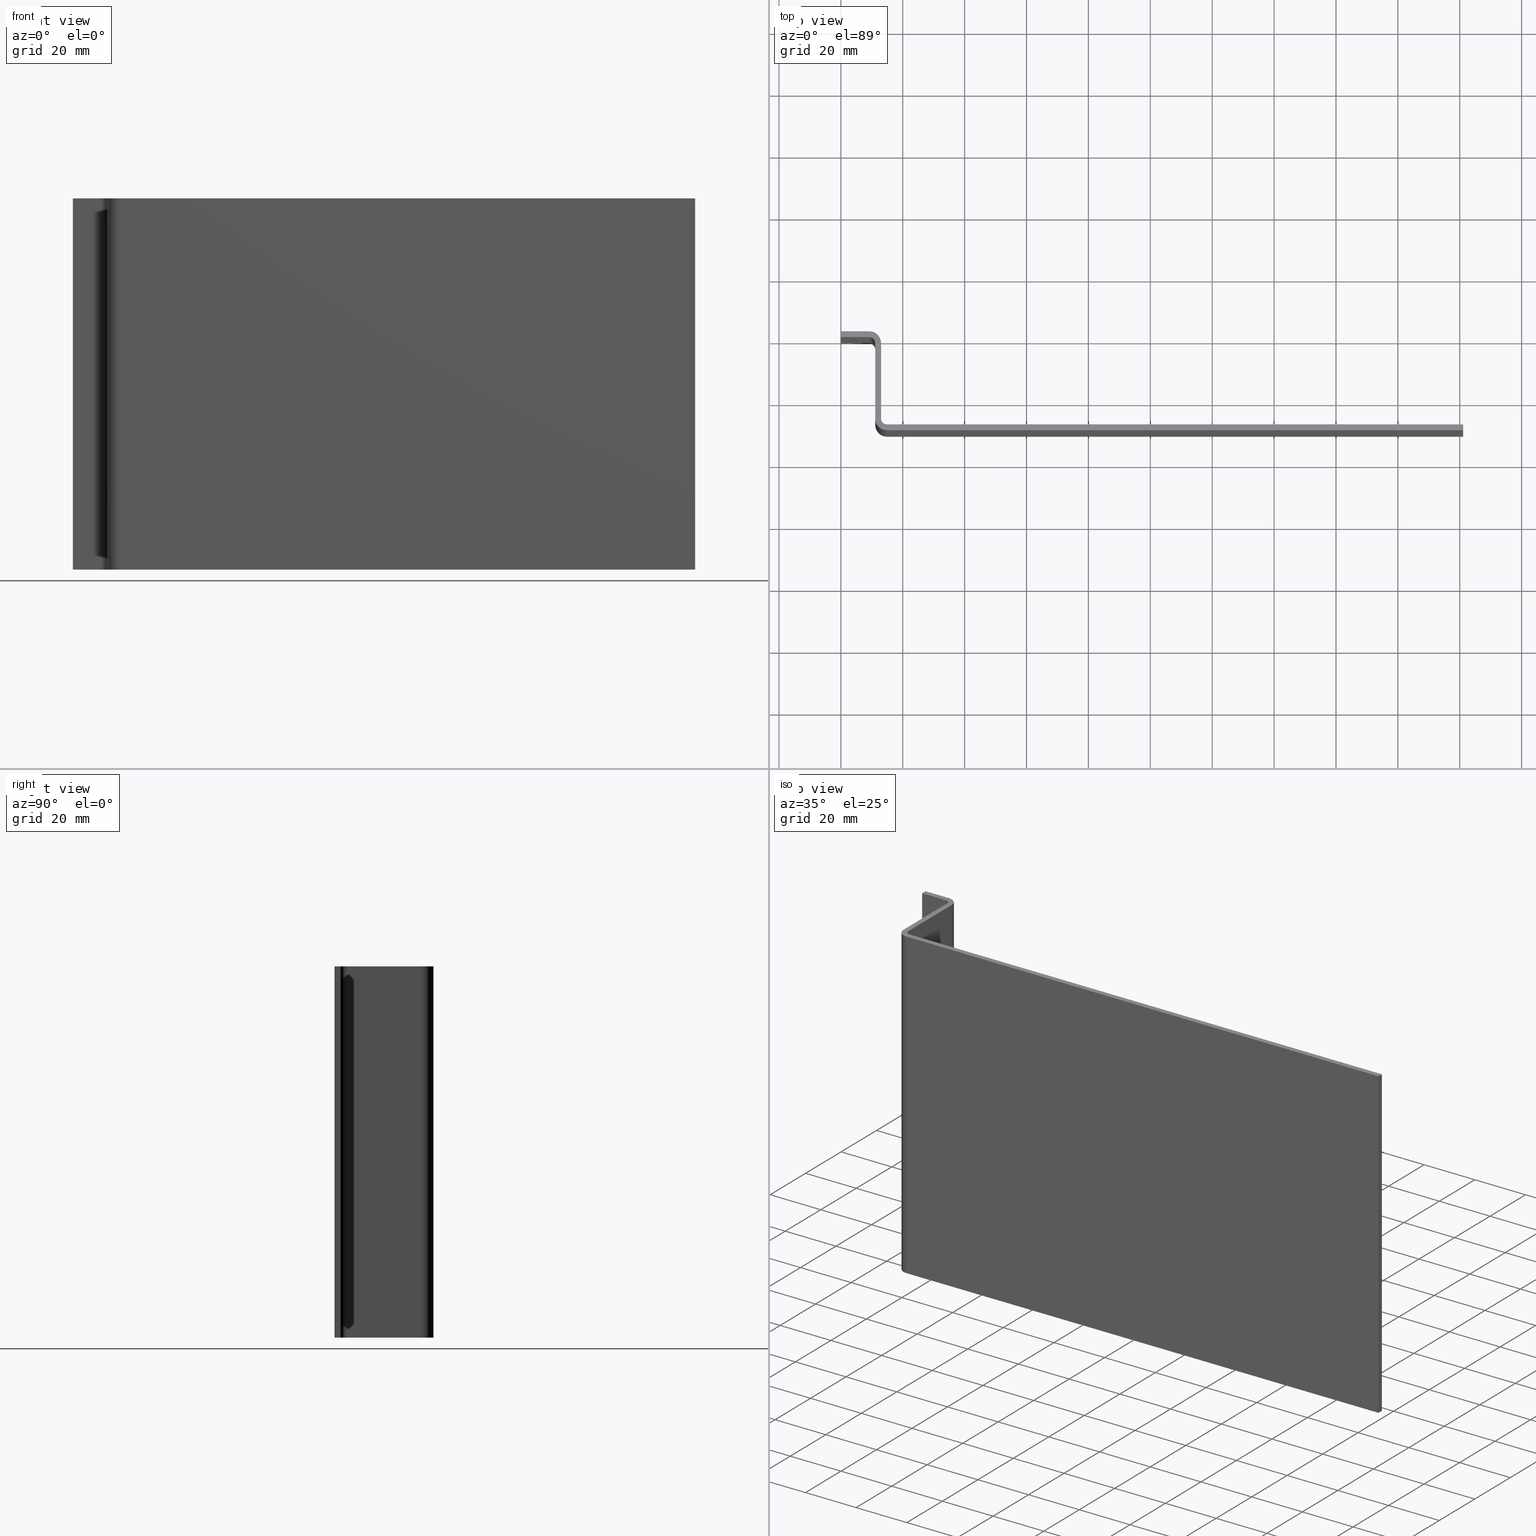
[diagram: canonical four-view strip — front | top / right | iso, engineering-drawing reading convention]
A machine part, canonical four-view strip (front | top / right | iso — engineering-drawing reading convention). The complete STEP part file that produces these views, byte-faithful:
ISO-10303-21;
HEADER;
FILE_DESCRIPTION (( 'STEP AP203' ),
    '1' );
FILE_NAME ('�st �zalasyon Kapak.STEP',
    '2018-12-19T12:19:28',
    ( '' ),
    ( '' ),
    'SwSTEP 2.0',
    'SolidWorks 2011',
    '' );
FILE_SCHEMA (( 'CONFIG_CONTROL_DESIGN' ));
ENDSEC;

DATA;
#1 = CC_DESIGN_DATE_AND_TIME_ASSIGNMENT ( #500, #501, ( #119 ) ) ;
#2 = APPROVAL ( #446, 'BEL�RT�LMEM��' ) ;
#3 = CC_DESIGN_DATE_AND_TIME_ASSIGNMENT ( #481, #482, ( #7 ) ) ;
#4 = APPROVAL ( #490, 'BEL�RT�LMEM��' ) ;
#5 = CC_DESIGN_PERSON_AND_ORGANIZATION_ASSIGNMENT ( #441, #443, ( #7 ) ) ;
#6 = CC_DESIGN_PERSON_AND_ORGANIZATION_ASSIGNMENT ( #448, #480, ( #141 ) ) ;
#7 = PRODUCT_DEFINITION ( 'Bilinmeyen', '', #134, #144 ) ;
#8 = CC_DESIGN_PERSON_AND_ORGANIZATION_ASSIGNMENT ( #491, #506, ( #119 ) ) ;
#9 = APPROVAL ( #477, 'BEL�RT�LMEM��' ) ;
#10 = CC_DESIGN_PERSON_AND_ORGANIZATION_ASSIGNMENT ( #493, #507, ( #134 ) ) ;
#11 = CC_DESIGN_PERSON_AND_ORGANIZATION_ASSIGNMENT ( #503, #492, ( #134 ) ) ;
#12 = PRODUCT_RELATED_PRODUCT_CATEGORY ( 'detail', '', ( #141 ) ) ;
#13 = ADVANCED_FACE ( 'NONE', ( #282 ), #266, .F. ) ;
#14 = ADVANCED_FACE ( 'NONE', ( #267 ), #227, .T. ) ;
#15 = ADVANCED_FACE ( 'NONE', ( #262 ), #275, .F. ) ;
#16 = ADVANCED_FACE ( 'NONE', ( #296 ), #261, .T. ) ;
#17 = ADVANCED_FACE ( 'NONE', ( #297 ), #277, .T. ) ;
#18 = EDGE_CURVE ( 'NONE', #204, #217, #280, .T. ) ;
#19 = ADVANCED_FACE ( 'NONE', ( #294 ), #264, .F. ) ;
#20 = EDGE_CURVE ( 'NONE', #226, #237, #249, .T. ) ;
#21 = ADVANCED_FACE ( 'NONE', ( #248 ), #253, .F. ) ;
#22 = ADVANCED_FACE ( 'NONE', ( #336 ), #255, .F. ) ;
#23 = EDGE_CURVE ( 'NONE', #197, #208, #318, .T. ) ;
#24 = EDGE_CURVE ( 'NONE', #219, #201, #325, .T. ) ;
#25 = EDGE_CURVE ( 'NONE', #208, #203, #308, .T. ) ;
#26 = EDGE_CURVE ( 'NONE', #218, #226, #71, .T. ) ;
#27 = ADVANCED_FACE ( 'NONE', ( #302 ), #315, .F. ) ;
#28 = EDGE_CURVE ( 'NONE', #232, #219, #321, .T. ) ;
#29 = EDGE_CURVE ( 'NONE', #202, #232, #104, .T. ) ;
#30 = EDGE_CURVE ( 'NONE', #217, #198, #343, .T. ) ;
#31 = EDGE_CURVE ( 'NONE', #189, #200, #83, .T. ) ;
#32 = EDGE_CURVE ( 'NONE', #205, #207, #331, .T. ) ;
#33 = EDGE_CURVE ( 'NONE', #218, #203, #322, .T. ) ;
#34 = ADVANCED_FACE ( 'NONE', ( #330 ), #313, .F. ) ;
#35 = EDGE_CURVE ( 'NONE', #201, #215, #66, .T. ) ;
#36 = EDGE_CURVE ( 'NONE', #189, #201, #356, .T. ) ;
#37 = EDGE_CURVE ( 'NONE', #202, #198, #361, .T. ) ;
#38 = EDGE_CURVE ( 'NONE', #197, #218, #305, .T. ) ;
#39 = EDGE_CURVE ( 'NONE', #237, #209, #113, .T. ) ;
#40 = EDGE_CURVE ( 'NONE', #207, #208, #348, .T. ) ;
#41 = ADVANCED_FACE ( 'NONE', ( #382 ), #370, .F. ) ;
#42 = EDGE_CURVE ( 'NONE', #225, #220, #371, .T. ) ;
#43 = EDGE_CURVE ( 'NONE', #215, #207, #378, .T. ) ;
#44 = EDGE_CURVE ( 'NONE', #200, #205, #353, .T. ) ;
#45 = EDGE_CURVE ( 'NONE', #220, #217, #368, .T. ) ;
#46 = EDGE_CURVE ( 'NONE', #225, #204, #377, .T. ) ;
#47 = EDGE_CURVE ( 'NONE', #220, #202, #387, .T. ) ;
#48 = EDGE_CURVE ( 'NONE', #205, #197, #386, .T. ) ;
#49 = EDGE_CURVE ( 'NONE', #200, #215, #350, .T. ) ;
#50 = EDGE_CURVE ( 'NONE', #203, #221, #94, .T. ) ;
#51 = EDGE_CURVE ( 'NONE', #237, #210, #385, .T. ) ;
#52 = EDGE_CURVE ( 'NONE', #226, #221, #422, .T. ) ;
#53 = EDGE_CURVE ( 'NONE', #221, #210, #420, .T. ) ;
#54 = EDGE_CURVE ( 'NONE', #198, #219, #96, .T. ) ;
#55 = EDGE_CURVE ( 'NONE', #210, #190, #87, .T. ) ;
#56 = EDGE_CURVE ( 'NONE', #190, #204, #401, .T. ) ;
#57 = EDGE_CURVE ( 'NONE', #209, #190, #394, .T. ) ;
#58 = ADVANCED_FACE ( 'NONE', ( #427 ), #431, .F. ) ;
#59 = ADVANCED_FACE ( 'NONE', ( #437 ), #428, .F. ) ;
#60 = EDGE_CURVE ( 'NONE', #209, #225, #438, .T. ) ;
#61 = EDGE_CURVE ( 'NONE', #232, #189, #398, .T. ) ;
#62 = ADVANCED_FACE ( 'NONE', ( #404 ), #418, .F. ) ;
#63 = APPLICATION_CONTEXT ( 'configuration controlled 3d designs of mechanical parts and assemblies' ) ;
#64 = APPLICATION_CONTEXT ( 'configuration controlled 3d designs of mechanical parts and assemblies' ) ;
#65 = VECTOR ( 'NONE', #310, 1000.000000000000000 ) ;
#66 = CIRCLE ( 'NONE', #103, 3.799999999999999400 ) ;
#67 = AXIS2_PLACEMENT_3D ( 'NONE', #393, #439, #397 ) ;
#68 = VECTOR ( 'NONE', #303, 1000.000000000000000 ) ;
#69 = VECTOR ( 'NONE', #391, 1000.000000000000000 ) ;
#70 = VECTOR ( 'NONE', #251, 1000.000000000000000 ) ;
#71 = CIRCLE ( 'NONE', #114, 1.899999999999999000 ) ;
#72 = VECTOR ( 'NONE', #440, 1000.000000000000000 ) ;
#73 = AXIS2_PLACEMENT_3D ( 'NONE', #289, #268, #245 ) ;
#74 = VECTOR ( 'NONE', #312, 1000.000000000000000 ) ;
#75 = VECTOR ( 'NONE', #352, 1000.000000000000000 ) ;
#76 = VECTOR ( 'NONE', #355, 1000.000000000000000 ) ;
#77 = VECTOR ( 'NONE', #326, 1000.000000000000000 ) ;
#78 = VECTOR ( 'NONE', #376, 1000.000000000000000 ) ;
#79 = VECTOR ( 'NONE', #383, 1000.000000000000000 ) ;
#80 = VECTOR ( 'NONE', #373, 1000.000000000000000 ) ;
#81 = AXIS2_PLACEMENT_3D ( 'NONE', #269, #283, #284 ) ;
#82 = CLOSED_SHELL ( 'NONE', ( #58, #19, #62, #21, #17, #27, #41, #22, #59, #15, #14, #34, #13, #16 ) ) ;
#83 = CIRCLE ( 'NONE', #92, 3.799999999999999400 ) ;
#84 = VECTOR ( 'NONE', #344, 1000.000000000000000 ) ;
#85 = AXIS2_PLACEMENT_3D ( 'NONE', #412, #410, #399 ) ;
#86 = VECTOR ( 'NONE', #341, 1000.000000000000000 ) ;
#87 = CIRCLE ( 'NONE', #116, 3.800000000000001200 ) ;
#88 = AXIS2_PLACEMENT_3D ( 'NONE', #362, #346, #363 ) ;
#89 = AXIS2_PLACEMENT_3D ( 'NONE', #299, #300, #304 ) ;
#90 = VECTOR ( 'NONE', #347, 1000.000000000000000 ) ;
#91 = AXIS2_PLACEMENT_3D ( 'NONE', #278, #288, #279 ) ;
#92 = AXIS2_PLACEMENT_3D ( 'NONE', #327, #329, #333 ) ;
#93 = AXIS2_PLACEMENT_3D ( 'NONE', #338, #334, #307 ) ;
#94 = CIRCLE ( 'NONE', #67, 1.899999999999999000 ) ;
#95 = VECTOR ( 'NONE', #314, 1000.000000000000000 ) ;
#96 = CIRCLE ( 'NONE', #85, 1.900000000000000600 ) ;
#97 = AXIS2_PLACEMENT_3D ( 'NONE', #309, #316, #317 ) ;
#98 = VECTOR ( 'NONE', #354, 1000.000000000000000 ) ;
#99 = AXIS2_PLACEMENT_3D ( 'NONE', #349, #389, #390 ) ;
#100 = VECTOR ( 'NONE', #359, 1000.000000000000000 ) ;
#101 = AXIS2_PLACEMENT_3D ( 'NONE', #270, #246, #291 ) ;
#102 = AXIS2_PLACEMENT_3D ( 'NONE', #256, #273, #276 ) ;
#103 = AXIS2_PLACEMENT_3D ( 'NONE', #374, #372, #365 ) ;
#104 = CIRCLE ( 'NONE', #105, 1.900000000000000600 ) ;
#105 = AXIS2_PLACEMENT_3D ( 'NONE', #332, #323, #301 ) ;
#106 = VECTOR ( 'NONE', #366, 1000.000000000000000 ) ;
#107 = VECTOR ( 'NONE', #381, 1000.000000000000000 ) ;
#108 = VECTOR ( 'NONE', #358, 1000.000000000000000 ) ;
#109 = AXIS2_PLACEMENT_3D ( 'NONE', #287, #260, #295 ) ;
#110 = VECTOR ( 'NONE', #430, 1000.000000000000000 ) ;
#111 = VECTOR ( 'NONE', #263, 1000.000000000000000 ) ;
#112 = AXIS2_PLACEMENT_3D ( 'NONE', #292, #254, #293 ) ;
#113 = CIRCLE ( 'NONE', #99, 3.800000000000001200 ) ;
#114 = AXIS2_PLACEMENT_3D ( 'NONE', #319, #339, #340 ) ;
#115 = VECTOR ( 'NONE', #337, 1000.000000000000000 ) ;
#116 = AXIS2_PLACEMENT_3D ( 'NONE', #424, #396, #400 ) ;
#117 = LOCAL_TIME ( 15, 19, 28.00000000000000000, #466 ) ;
#118 = CC_DESIGN_APPROVAL ( #2, ( #134 ) ) ;
#119 = SECURITY_CLASSIFICATION ( '', '', #494 ) ;
#120 = LOCAL_TIME ( 15, 19, 28.00000000000000000, #479 ) ;
#121 = AXIS2_PLACEMENT_3D ( 'NONE', #407, #408, #409 ) ;
#122 = APPROVAL_PERSON_ORGANIZATION ( #498, #4, #495 ) ;
#123 =( GEOMETRIC_REPRESENTATION_CONTEXT ( 3 ) GLOBAL_UNCERTAINTY_ASSIGNED_CONTEXT ( ( #145 ) ) GLOBAL_UNIT_ASSIGNED_CONTEXT ( ( #474, #475, #454 ) ) REPRESENTATION_CONTEXT ( 'NONE', 'WORKASPACE' ) );
#124 = CC_DESIGN_APPROVAL ( #4, ( #119 ) ) ;
#125 = VECTOR ( 'NONE', #436, 1000.000000000000000 ) ;
#126 = CC_DESIGN_SECURITY_CLASSIFICATION ( #119, ( #134 ) ) ;
#127 = VECTOR ( 'NONE', #395, 1000.000000000000000 ) ;
#128 = APPROVAL_PERSON_ORGANIZATION ( #444, #2, #447 ) ;
#129 = VECTOR ( 'NONE', #402, 1000.000000000000000 ) ;
#130 = CC_DESIGN_APPROVAL ( #9, ( #7 ) ) ;
#131 = AXIS2_PLACEMENT_3D ( 'NONE', #459, #460, #463 ) ;
#132 = APPROVAL_PERSON_ORGANIZATION ( #464, #9, #487 ) ;
#133 = LOCAL_TIME ( 15, 19, 28.00000000000000000, #505 ) ;
#134 = PRODUCT_DEFINITION_FORMATION_WITH_SPECIFIED_SOURCE ( '     Herhangi', '', #141, .NOT_KNOWN. ) ;
#135 = LOCAL_TIME ( 15, 19, 28.00000000000000000, #453 ) ;
#136 = AXIS2_PLACEMENT_3D ( 'NONE', #433, #434, #435 ) ;
#137 = ORGANIZATION ( 'BEL�RT�LMEM��', 'BEL�RT�LMEM��', '' ) ;
#138 = VECTOR ( 'NONE', #426, 1000.000000000000000 ) ;
#139 = LOCAL_TIME ( 15, 19, 28.00000000000000000, #504 ) ;
#140 = AXIS2_PLACEMENT_3D ( 'NONE', #403, #417, #432 ) ;
#141 = PRODUCT ( '�st �zalasyon Kapak', '�st �zalasyon Kapak', '', ( #476 ) ) ;
#142 = MANIFOLD_SOLID_BREP ( 'Y�kseklik-Ekstr�zyon1', #82 ) ;
#143 = PRODUCT_DEFINITION_SHAPE ( 'NONE', 'NONE',  #7 ) ;
#144 = DESIGN_CONTEXT ( 'detailed design', #63, 'design' ) ;
#145 = UNCERTAINTY_MEASURE_WITH_UNIT (LENGTH_MEASURE( 1.000000000000000100E-005 ), #474, 'distance_accuracy_value', 'NONE');
#146 = ORIENTED_EDGE ( 'NONE', *, *, #61, .F. ) ;
#147 = ORIENTED_EDGE ( 'NONE', *, *, #23, .F. ) ;
#148 = ORIENTED_EDGE ( 'NONE', *, *, #44, .F. ) ;
#149 = ORIENTED_EDGE ( 'NONE', *, *, #36, .T. ) ;
#150 = ORIENTED_EDGE ( 'NONE', *, *, #55, .T. ) ;
#151 = ORIENTED_EDGE ( 'NONE', *, *, #52, .T. ) ;
#152 = ORIENTED_EDGE ( 'NONE', *, *, #30, .T. ) ;
#153 = ORIENTED_EDGE ( 'NONE', *, *, #32, .F. ) ;
#154 = ORIENTED_EDGE ( 'NONE', *, *, #28, .F. ) ;
#155 = ORIENTED_EDGE ( 'NONE', *, *, #23, .T. ) ;
#156 = ORIENTED_EDGE ( 'NONE', *, *, #49, .F. ) ;
#157 = ORIENTED_EDGE ( 'NONE', *, *, #36, .F. ) ;
#158 = ORIENTED_EDGE ( 'NONE', *, *, #31, .F. ) ;
#159 = ORIENTED_EDGE ( 'NONE', *, *, #49, .T. ) ;
#160 = ORIENTED_EDGE ( 'NONE', *, *, #33, .T. ) ;
#161 = ORIENTED_EDGE ( 'NONE', *, *, #37, .T. ) ;
#162 = ORIENTED_EDGE ( 'NONE', *, *, #51, .F. ) ;
#163 = ORIENTED_EDGE ( 'NONE', *, *, #47, .F. ) ;
#164 = ORIENTED_EDGE ( 'NONE', *, *, #37, .F. ) ;
#165 = ORIENTED_EDGE ( 'NONE', *, *, #48, .F. ) ;
#166 = ORIENTED_EDGE ( 'NONE', *, *, #24, .T. ) ;
#167 = ORIENTED_EDGE ( 'NONE', *, *, #26, .F. ) ;
#168 = ORIENTED_EDGE ( 'NONE', *, *, #38, .F. ) ;
#169 = ORIENTED_EDGE ( 'NONE', *, *, #42, .F. ) ;
#170 = ORIENTED_EDGE ( 'NONE', *, *, #46, .T. ) ;
#171 = ORIENTED_EDGE ( 'NONE', *, *, #45, .F. ) ;
#172 = ORIENTED_EDGE ( 'NONE', *, *, #33, .F. ) ;
#173 = ORIENTED_EDGE ( 'NONE', *, *, #50, .T. ) ;
#174 = ORIENTED_EDGE ( 'NONE', *, *, #52, .F. ) ;
#175 = ORIENTED_EDGE ( 'NONE', *, *, #53, .T. ) ;
#176 = ORIENTED_EDGE ( 'NONE', *, *, #40, .T. ) ;
#177 = ORIENTED_EDGE ( 'NONE', *, *, #29, .F. ) ;
#178 = ORIENTED_EDGE ( 'NONE', *, *, #45, .T. ) ;
#179 = ORIENTED_EDGE ( 'NONE', *, *, #32, .T. ) ;
#180 = ORIENTED_EDGE ( 'NONE', *, *, #43, .T. ) ;
#181 = ORIENTED_EDGE ( 'NONE', *, *, #20, .F. ) ;
#182 = ORIENTED_EDGE ( 'NONE', *, *, #18, .T. ) ;
#183 = ORIENTED_EDGE ( 'NONE', *, *, #54, .T. ) ;
#184 = ORIENTED_EDGE ( 'NONE', *, *, #25, .T. ) ;
#185 = ORIENTED_EDGE ( 'NONE', *, *, #28, .T. ) ;
#186 = ORIENTED_EDGE ( 'NONE', *, *, #31, .T. ) ;
#187 = ORIENTED_EDGE ( 'NONE', *, *, #18, .F. ) ;
#188 = ORIENTED_EDGE ( 'NONE', *, *, #25, .F. ) ;
#189 = VERTEX_POINT ( 'NONE', #416 ) ;
#190 = VERTEX_POINT ( 'NONE', #414 ) ;
#191 = ORIENTED_EDGE ( 'NONE', *, *, #47, .T. ) ;
#192 = ORIENTED_EDGE ( 'NONE', *, *, #53, .F. ) ;
#193 = ORIENTED_EDGE ( 'NONE', *, *, #30, .F. ) ;
#194 = ORIENTED_EDGE ( 'NONE', *, *, #42, .T. ) ;
#195 = ORIENTED_EDGE ( 'NONE', *, *, #24, .F. ) ;
#196 = ORIENTED_EDGE ( 'NONE', *, *, #38, .T. ) ;
#197 = VERTEX_POINT ( 'NONE', #405 ) ;
#198 = VERTEX_POINT ( 'NONE', #411 ) ;
#199 = ORIENTED_EDGE ( 'NONE', *, *, #60, .F. ) ;
#200 = VERTEX_POINT ( 'NONE', #413 ) ;
#201 = VERTEX_POINT ( 'NONE', #419 ) ;
#202 = VERTEX_POINT ( 'NONE', #488 ) ;
#203 = VERTEX_POINT ( 'NONE', #415 ) ;
#204 = VERTEX_POINT ( 'NONE', #472 ) ;
#205 = VERTEX_POINT ( 'NONE', #457 ) ;
#206 = ORIENTED_EDGE ( 'NONE', *, *, #35, .T. ) ;
#207 = VERTEX_POINT ( 'NONE', #461 ) ;
#208 = VERTEX_POINT ( 'NONE', #445 ) ;
#209 = VERTEX_POINT ( 'NONE', #468 ) ;
#210 = VERTEX_POINT ( 'NONE', #473 ) ;
#211 = ORIENTED_EDGE ( 'NONE', *, *, #35, .F. ) ;
#212 = ORIENTED_EDGE ( 'NONE', *, *, #51, .T. ) ;
#213 = ORIENTED_EDGE ( 'NONE', *, *, #57, .F. ) ;
#214 = ORIENTED_EDGE ( 'NONE', *, *, #55, .F. ) ;
#215 = VERTEX_POINT ( 'NONE', #456 ) ;
#216 = ORIENTED_EDGE ( 'NONE', *, *, #57, .T. ) ;
#217 = VERTEX_POINT ( 'NONE', #465 ) ;
#218 = VERTEX_POINT ( 'NONE', #469 ) ;
#219 = VERTEX_POINT ( 'NONE', #442 ) ;
#220 = VERTEX_POINT ( 'NONE', #470 ) ;
#221 = VERTEX_POINT ( 'NONE', #471 ) ;
#222 = ORIENTED_EDGE ( 'NONE', *, *, #39, .T. ) ;
#223 = ORIENTED_EDGE ( 'NONE', *, *, #61, .T. ) ;
#224 = ORIENTED_EDGE ( 'NONE', *, *, #48, .T. ) ;
#225 = VERTEX_POINT ( 'NONE', #462 ) ;
#226 = VERTEX_POINT ( 'NONE', #486 ) ;
#227 = CYLINDRICAL_SURFACE ( 'NONE', #81, 3.800000000000000300 ) ;
#228 = EDGE_LOOP ( 'NONE', ( #206, #156, #158, #149 ) ) ;
#229 = ORIENTED_EDGE ( 'NONE', *, *, #46, .F. ) ;
#230 = ORIENTED_EDGE ( 'NONE', *, *, #29, .T. ) ;
#231 = ORIENTED_EDGE ( 'NONE', *, *, #44, .T. ) ;
#232 = VERTEX_POINT ( 'NONE', #489 ) ;
#233 = EDGE_LOOP ( 'NONE', ( #173, #174, #167, #160 ) ) ;
#234 = ORIENTED_EDGE ( 'NONE', *, *, #20, .T. ) ;
#235 = ORIENTED_EDGE ( 'NONE', *, *, #60, .T. ) ;
#236 = ORIENTED_EDGE ( 'NONE', *, *, #43, .F. ) ;
#237 = VERTEX_POINT ( 'NONE', #452 ) ;
#238 = ORIENTED_EDGE ( 'NONE', *, *, #50, .F. ) ;
#239 = ORIENTED_EDGE ( 'NONE', *, *, #56, .F. ) ;
#240 = ORIENTED_EDGE ( 'NONE', *, *, #56, .T. ) ;
#241 = ORIENTED_EDGE ( 'NONE', *, *, #54, .F. ) ;
#242 = ORIENTED_EDGE ( 'NONE', *, *, #40, .F. ) ;
#243 = ORIENTED_EDGE ( 'NONE', *, *, #26, .T. ) ;
#244 = ORIENTED_EDGE ( 'NONE', *, *, #39, .F. ) ;
#245 = DIRECTION ( 'NONE',  ( -1.000000000000000000, 0.0000000000000000000, 0.0000000000000000000 ) ) ;
#246 = DIRECTION ( 'NONE',  ( 0.0000000000000000000, 1.000000000000000000, 0.0000000000000000000 ) ) ;
#247 = EDGE_LOOP ( 'NONE', ( #184, #172, #168, #155 ) ) ;
#248 = FACE_OUTER_BOUND ( 'NONE', #271, .T. ) ;
#249 = LINE ( 'NONE', #250, #70 ) ;
#250 = CARTESIAN_POINT ( 'NONE',  ( 13.00000000000000200, -1.899999999999999500, 120.0000000000000000 ) ) ;
#251 = DIRECTION ( 'NONE',  ( -7.109522442527900700E-017, 1.000000000000000000, -0.0000000000000000000 ) ) ;
#252 = CARTESIAN_POINT ( 'NONE',  ( 0.0000000000000000000, 1.899999999999999900, 0.0000000000000000000 ) ) ;
#253 = PLANE ( 'NONE',  #112 ) ;
#254 = DIRECTION ( 'NONE',  ( 1.000000000000000000, 1.421904488505580900E-016, -0.0000000000000000000 ) ) ;
#255 = PLANE ( 'NONE',  #97 ) ;
#256 = CARTESIAN_POINT ( 'NONE',  ( 13.00000000000000200, -1.899999999999999500, 120.0000000000000000 ) ) ;
#257 = EDGE_LOOP ( 'NONE', ( #150, #213, #244, #212 ) ) ;
#258 = EDGE_LOOP ( 'NONE', ( #194, #191, #230, #223, #186, #231, #224, #196, #243, #234, #222, #235 ) ) ;
#259 = EDGE_LOOP ( 'NONE', ( #182, #171, #169, #170 ) ) ;
#260 = DIRECTION ( 'NONE',  ( -0.0000000000000000000, 0.0000000000000000000, -1.000000000000000000 ) ) ;
#261 = PLANE ( 'NONE',  #91 ) ;
#262 = FACE_OUTER_BOUND ( 'NONE', #272, .T. ) ;
#263 = DIRECTION ( 'NONE',  ( 0.0000000000000000000, -1.000000000000000000, 0.0000000000000000000 ) ) ;
#264 = PLANE ( 'NONE',  #101 ) ;
#265 = EDGE_LOOP ( 'NONE', ( #152, #164, #163, #178 ) ) ;
#266 = PLANE ( 'NONE',  #109 ) ;
#267 = FACE_OUTER_BOUND ( 'NONE', #257, .T. ) ;
#268 = DIRECTION ( 'NONE',  ( -0.0000000000000000000, -0.0000000000000000000, -1.000000000000000000 ) ) ;
#269 = CARTESIAN_POINT ( 'NONE',  ( 9.199999999999999300, -1.899999999999999900, 120.0000000000000000 ) ) ;
#270 = CARTESIAN_POINT ( 'NONE',  ( 0.0000000000000000000, 0.0000000000000000000, 120.0000000000000000 ) ) ;
#271 = EDGE_LOOP ( 'NONE', ( #166, #157, #146, #185 ) ) ;
#272 = EDGE_LOOP ( 'NONE', ( #175, #162, #181, #151 ) ) ;
#273 = DIRECTION ( 'NONE',  ( -1.000000000000000000, -7.109522442527900700E-017, 0.0000000000000000000 ) ) ;
#274 = EDGE_LOOP ( 'NONE', ( #180, #153, #148, #159 ) ) ;
#275 = PLANE ( 'NONE',  #102 ) ;
#276 = DIRECTION ( 'NONE',  ( 7.109522442527900700E-017, -1.000000000000000000, 0.0000000000000000000 ) ) ;
#277 = CYLINDRICAL_SURFACE ( 'NONE', #73, 3.799999999999999400 ) ;
#278 = CARTESIAN_POINT ( 'NONE',  ( 9.199999999999997500, -1.899999999999999900, 0.0000000000000000000 ) ) ;
#279 = DIRECTION ( 'NONE',  ( -1.000000000000000000, 0.0000000000000000000, 0.0000000000000000000 ) ) ;
#280 = LINE ( 'NONE', #252, #111 ) ;
#281 = EDGE_LOOP ( 'NONE', ( #187, #239, #214, #192, #238, #188, #242, #236, #211, #195, #241, #193 ) ) ;
#282 = FACE_OUTER_BOUND ( 'NONE', #258, .T. ) ;
#283 = DIRECTION ( 'NONE',  ( -0.0000000000000000000, -0.0000000000000000000, -1.000000000000000000 ) ) ;
#284 = DIRECTION ( 'NONE',  ( -1.000000000000000000, 0.0000000000000000000, 0.0000000000000000000 ) ) ;
#285 = EDGE_LOOP ( 'NONE', ( #183, #154, #177, #161 ) ) ;
#286 = EDGE_LOOP ( 'NONE', ( #240, #229, #199, #216 ) ) ;
#287 = CARTESIAN_POINT ( 'NONE',  ( 9.199999999999997500, -1.899999999999999900, 120.0000000000000000 ) ) ;
#288 = DIRECTION ( 'NONE',  ( -0.0000000000000000000, 0.0000000000000000000, -1.000000000000000000 ) ) ;
#289 = CARTESIAN_POINT ( 'NONE',  ( 14.90000000000000200, -26.30000000000000400, 120.0000000000000000 ) ) ;
#290 = EDGE_LOOP ( 'NONE', ( #176, #147, #165, #179 ) ) ;
#291 = DIRECTION ( 'NONE',  ( 0.0000000000000000000, -0.0000000000000000000, 1.000000000000000000 ) ) ;
#292 = CARTESIAN_POINT ( 'NONE',  ( 11.09999999999999800, -1.899999999999999700, 120.0000000000000000 ) ) ;
#293 = DIRECTION ( 'NONE',  ( -1.421904488505580900E-016, 1.000000000000000000, 0.0000000000000000000 ) ) ;
#294 = FACE_OUTER_BOUND ( 'NONE', #265, .T. ) ;
#295 = DIRECTION ( 'NONE',  ( -1.000000000000000000, 0.0000000000000000000, 0.0000000000000000000 ) ) ;
#296 = FACE_OUTER_BOUND ( 'NONE', #281, .T. ) ;
#297 = FACE_OUTER_BOUND ( 'NONE', #228, .T. ) ;
#298 = CARTESIAN_POINT ( 'NONE',  ( 201.0999999999999900, -30.10000000000000100, 120.0000000000000000 ) ) ;
#299 = CARTESIAN_POINT ( 'NONE',  ( 0.0000000000000000000, 1.899999999999999900, 120.0000000000000000 ) ) ;
#300 = DIRECTION ( 'NONE',  ( -2.356961244533705400E-017, -1.000000000000000000, 0.0000000000000000000 ) ) ;
#301 = DIRECTION ( 'NONE',  ( -1.000000000000000000, 0.0000000000000000000, 0.0000000000000000000 ) ) ;
#302 = FACE_OUTER_BOUND ( 'NONE', #274, .T. ) ;
#303 = DIRECTION ( 'NONE',  ( -0.0000000000000000000, -0.0000000000000000000, -1.000000000000000000 ) ) ;
#304 = DIRECTION ( 'NONE',  ( 1.000000000000000000, -2.356961244533705400E-017, 0.0000000000000000000 ) ) ;
#305 = LINE ( 'NONE', #306, #100 ) ;
#306 = CARTESIAN_POINT ( 'NONE',  ( 14.90000000000001600, -28.20000000000000300, 120.0000000000000000 ) ) ;
#307 = DIRECTION ( 'NONE',  ( 0.0000000000000000000, -0.0000000000000000000, 1.000000000000000000 ) ) ;
#308 = LINE ( 'NONE', #311, #74 ) ;
#309 = CARTESIAN_POINT ( 'NONE',  ( 14.90000000000001600, -28.20000000000000300, 120.0000000000000000 ) ) ;
#310 = DIRECTION ( 'NONE',  ( 1.421904488505580900E-016, -1.000000000000000000, 0.0000000000000000000 ) ) ;
#311 = CARTESIAN_POINT ( 'NONE',  ( 14.90000000000001600, -28.20000000000000300, 0.0000000000000000000 ) ) ;
#312 = DIRECTION ( 'NONE',  ( -1.000000000000000000, -0.0000000000000000000, -0.0000000000000000000 ) ) ;
#313 = PLANE ( 'NONE',  #89 ) ;
#314 = DIRECTION ( 'NONE',  ( -0.0000000000000000000, -0.0000000000000000000, -1.000000000000000000 ) ) ;
#315 = PLANE ( 'NONE',  #93 ) ;
#316 = DIRECTION ( 'NONE',  ( 0.0000000000000000000, -1.000000000000000000, 0.0000000000000000000 ) ) ;
#317 = DIRECTION ( 'NONE',  ( 0.0000000000000000000, -0.0000000000000000000, -1.000000000000000000 ) ) ;
#318 = LINE ( 'NONE', #324, #115 ) ;
#319 = CARTESIAN_POINT ( 'NONE',  ( 14.90000000000000200, -26.30000000000000400, 120.0000000000000000 ) ) ;
#320 = CARTESIAN_POINT ( 'NONE',  ( 11.09999999999999800, -1.899999999999999700, 120.0000000000000000 ) ) ;
#321 = LINE ( 'NONE', #320, #86 ) ;
#322 = LINE ( 'NONE', #328, #68 ) ;
#323 = DIRECTION ( 'NONE',  ( -0.0000000000000000000, -0.0000000000000000000, -1.000000000000000000 ) ) ;
#324 = CARTESIAN_POINT ( 'NONE',  ( 201.0999999999999900, -28.20000000000000300, 120.0000000000000000 ) ) ;
#325 = LINE ( 'NONE', #342, #65 ) ;
#326 = DIRECTION ( 'NONE',  ( 1.000000000000000000, 0.0000000000000000000, 0.0000000000000000000 ) ) ;
#327 = CARTESIAN_POINT ( 'NONE',  ( 14.90000000000000200, -26.30000000000000400, 120.0000000000000000 ) ) ;
#328 = CARTESIAN_POINT ( 'NONE',  ( 14.90000000000001600, -28.20000000000000300, 120.0000000000000000 ) ) ;
#329 = DIRECTION ( 'NONE',  ( 0.0000000000000000000, 0.0000000000000000000, 1.000000000000000000 ) ) ;
#330 = FACE_OUTER_BOUND ( 'NONE', #286, .T. ) ;
#331 = LINE ( 'NONE', #298, #95 ) ;
#332 = CARTESIAN_POINT ( 'NONE',  ( 9.199999999999997500, -1.899999999999999900, 120.0000000000000000 ) ) ;
#333 = DIRECTION ( 'NONE',  ( -1.000000000000000000, 0.0000000000000000000, 0.0000000000000000000 ) ) ;
#334 = DIRECTION ( 'NONE',  ( 0.0000000000000000000, 1.000000000000000000, 0.0000000000000000000 ) ) ;
#335 = CARTESIAN_POINT ( 'NONE',  ( 0.0000000000000000000, 0.0000000000000000000, 0.0000000000000000000 ) ) ;
#336 = FACE_OUTER_BOUND ( 'NONE', #247, .T. ) ;
#337 = DIRECTION ( 'NONE',  ( -0.0000000000000000000, -0.0000000000000000000, -1.000000000000000000 ) ) ;
#338 = CARTESIAN_POINT ( 'NONE',  ( 14.90000000000002700, -30.10000000000000100, 120.0000000000000000 ) ) ;
#339 = DIRECTION ( 'NONE',  ( -0.0000000000000000000, -0.0000000000000000000, -1.000000000000000000 ) ) ;
#340 = DIRECTION ( 'NONE',  ( -1.000000000000000000, 0.0000000000000000000, 0.0000000000000000000 ) ) ;
#341 = DIRECTION ( 'NONE',  ( -0.0000000000000000000, -0.0000000000000000000, -1.000000000000000000 ) ) ;
#342 = CARTESIAN_POINT ( 'NONE',  ( 11.09999999999999800, -1.899999999999999700, 0.0000000000000000000 ) ) ;
#343 = LINE ( 'NONE', #335, #77 ) ;
#344 = DIRECTION ( 'NONE',  ( -0.0000000000000000000, 1.000000000000000000, -0.0000000000000000000 ) ) ;
#345 = CARTESIAN_POINT ( 'NONE',  ( 201.0999999999999900, -28.20000000000000300, 0.0000000000000000000 ) ) ;
#346 = DIRECTION ( 'NONE',  ( -1.000000000000000000, 0.0000000000000000000, 0.0000000000000000000 ) ) ;
#347 = DIRECTION ( 'NONE',  ( -0.0000000000000000000, 1.000000000000000000, -0.0000000000000000000 ) ) ;
#348 = LINE ( 'NONE', #345, #84 ) ;
#349 = CARTESIAN_POINT ( 'NONE',  ( 9.199999999999999300, -1.899999999999999900, 120.0000000000000000 ) ) ;
#350 = LINE ( 'NONE', #351, #75 ) ;
#351 = CARTESIAN_POINT ( 'NONE',  ( 14.90000000000002900, -30.10000000000000100, 120.0000000000000000 ) ) ;
#352 = DIRECTION ( 'NONE',  ( -0.0000000000000000000, -0.0000000000000000000, -1.000000000000000000 ) ) ;
#353 = LINE ( 'NONE', #367, #79 ) ;
#354 = DIRECTION ( 'NONE',  ( -0.0000000000000000000, -0.0000000000000000000, -1.000000000000000000 ) ) ;
#355 = DIRECTION ( 'NONE',  ( -0.0000000000000000000, -0.0000000000000000000, -1.000000000000000000 ) ) ;
#356 = LINE ( 'NONE', #369, #106 ) ;
#357 = CARTESIAN_POINT ( 'NONE',  ( 201.0999999999999900, -28.20000000000000300, 120.0000000000000000 ) ) ;
#358 = DIRECTION ( 'NONE',  ( -0.0000000000000000000, -0.0000000000000000000, -1.000000000000000000 ) ) ;
#359 = DIRECTION ( 'NONE',  ( -1.000000000000000000, -0.0000000000000000000, -0.0000000000000000000 ) ) ;
#360 = CARTESIAN_POINT ( 'NONE',  ( 9.199999999999997500, 0.0000000000000000000, 120.0000000000000000 ) ) ;
#361 = LINE ( 'NONE', #360, #98 ) ;
#362 = CARTESIAN_POINT ( 'NONE',  ( 201.0999999999999900, -28.20000000000000300, 120.0000000000000000 ) ) ;
#363 = DIRECTION ( 'NONE',  ( 0.0000000000000000000, 0.0000000000000000000, 1.000000000000000000 ) ) ;
#364 = CARTESIAN_POINT ( 'NONE',  ( 0.0000000000000000000, 0.0000000000000000000, 120.0000000000000000 ) ) ;
#365 = DIRECTION ( 'NONE',  ( -1.000000000000000000, 0.0000000000000000000, 0.0000000000000000000 ) ) ;
#366 = DIRECTION ( 'NONE',  ( -0.0000000000000000000, -0.0000000000000000000, -1.000000000000000000 ) ) ;
#367 = CARTESIAN_POINT ( 'NONE',  ( 14.90000000000002700, -30.10000000000000100, 120.0000000000000000 ) ) ;
#368 = LINE ( 'NONE', #384, #108 ) ;
#369 = CARTESIAN_POINT ( 'NONE',  ( 11.10000000000000100, -26.29999999999997600, 120.0000000000000000 ) ) ;
#370 = PLANE ( 'NONE',  #88 ) ;
#371 = LINE ( 'NONE', #380, #107 ) ;
#372 = DIRECTION ( 'NONE',  ( 0.0000000000000000000, 0.0000000000000000000, 1.000000000000000000 ) ) ;
#373 = DIRECTION ( 'NONE',  ( 1.000000000000000000, 0.0000000000000000000, 0.0000000000000000000 ) ) ;
#374 = CARTESIAN_POINT ( 'NONE',  ( 14.90000000000000200, -26.30000000000000400, 0.0000000000000000000 ) ) ;
#375 = CARTESIAN_POINT ( 'NONE',  ( 14.90000000000002700, -30.10000000000000100, 0.0000000000000000000 ) ) ;
#376 = DIRECTION ( 'NONE',  ( 1.000000000000000000, 0.0000000000000000000, 0.0000000000000000000 ) ) ;
#377 = LINE ( 'NONE', #379, #76 ) ;
#378 = LINE ( 'NONE', #375, #78 ) ;
#379 = CARTESIAN_POINT ( 'NONE',  ( 0.0000000000000000000, 1.899999999999999900, 120.0000000000000000 ) ) ;
#380 = CARTESIAN_POINT ( 'NONE',  ( 0.0000000000000000000, 1.899999999999999900, 120.0000000000000000 ) ) ;
#381 = DIRECTION ( 'NONE',  ( 0.0000000000000000000, -1.000000000000000000, 0.0000000000000000000 ) ) ;
#382 = FACE_OUTER_BOUND ( 'NONE', #290, .T. ) ;
#383 = DIRECTION ( 'NONE',  ( 1.000000000000000000, 0.0000000000000000000, 0.0000000000000000000 ) ) ;
#384 = CARTESIAN_POINT ( 'NONE',  ( 0.0000000000000000000, 0.0000000000000000000, 120.0000000000000000 ) ) ;
#385 = LINE ( 'NONE', #388, #72 ) ;
#386 = LINE ( 'NONE', #357, #90 ) ;
#387 = LINE ( 'NONE', #364, #80 ) ;
#388 = CARTESIAN_POINT ( 'NONE',  ( 13.00000000000000200, -1.899999999999999500, 120.0000000000000000 ) ) ;
#389 = DIRECTION ( 'NONE',  ( 0.0000000000000000000, 0.0000000000000000000, 1.000000000000000000 ) ) ;
#390 = DIRECTION ( 'NONE',  ( 1.000000000000000000, 0.0000000000000000000, 0.0000000000000000000 ) ) ;
#391 = DIRECTION ( 'NONE',  ( -0.0000000000000000000, -0.0000000000000000000, -1.000000000000000000 ) ) ;
#392 = CARTESIAN_POINT ( 'NONE',  ( 0.0000000000000000000, 1.899999999999999900, 120.0000000000000000 ) ) ;
#393 = CARTESIAN_POINT ( 'NONE',  ( 14.90000000000000200, -26.30000000000000400, 0.0000000000000000000 ) ) ;
#394 = LINE ( 'NONE', #425, #138 ) ;
#395 = DIRECTION ( 'NONE',  ( -1.000000000000000000, 2.356961244533705400E-017, -0.0000000000000000000 ) ) ;
#396 = DIRECTION ( 'NONE',  ( 0.0000000000000000000, 0.0000000000000000000, 1.000000000000000000 ) ) ;
#397 = DIRECTION ( 'NONE',  ( -1.000000000000000000, 0.0000000000000000000, 0.0000000000000000000 ) ) ;
#398 = LINE ( 'NONE', #406, #125 ) ;
#399 = DIRECTION ( 'NONE',  ( -1.000000000000000000, 0.0000000000000000000, 0.0000000000000000000 ) ) ;
#400 = DIRECTION ( 'NONE',  ( 1.000000000000000000, 0.0000000000000000000, 0.0000000000000000000 ) ) ;
#401 = LINE ( 'NONE', #421, #129 ) ;
#402 = DIRECTION ( 'NONE',  ( -1.000000000000000000, 2.356961244533705400E-017, -0.0000000000000000000 ) ) ;
#403 = CARTESIAN_POINT ( 'NONE',  ( 0.0000000000000000000, 1.899999999999999900, 120.0000000000000000 ) ) ;
#404 = FACE_OUTER_BOUND ( 'NONE', #285, .T. ) ;
#405 = CARTESIAN_POINT ( 'NONE',  ( 201.0999999999999900, -28.20000000000000300, 120.0000000000000000 ) ) ;
#406 = CARTESIAN_POINT ( 'NONE',  ( 11.09999999999999800, -1.899999999999999700, 120.0000000000000000 ) ) ;
#407 = CARTESIAN_POINT ( 'NONE',  ( 9.199999999999997500, -1.899999999999999900, 120.0000000000000000 ) ) ;
#408 = DIRECTION ( 'NONE',  ( -0.0000000000000000000, -0.0000000000000000000, -1.000000000000000000 ) ) ;
#409 = DIRECTION ( 'NONE',  ( -1.000000000000000000, 0.0000000000000000000, 0.0000000000000000000 ) ) ;
#410 = DIRECTION ( 'NONE',  ( -0.0000000000000000000, -0.0000000000000000000, -1.000000000000000000 ) ) ;
#411 = CARTESIAN_POINT ( 'NONE',  ( 9.199999999999997500, 0.0000000000000000000, 0.0000000000000000000 ) ) ;
#412 = CARTESIAN_POINT ( 'NONE',  ( 9.199999999999997500, -1.899999999999999900, 0.0000000000000000000 ) ) ;
#413 = CARTESIAN_POINT ( 'NONE',  ( 14.90000000000002900, -30.10000000000000100, 120.0000000000000000 ) ) ;
#414 = CARTESIAN_POINT ( 'NONE',  ( 9.199999999999999300, 1.900000000000000400, 0.0000000000000000000 ) ) ;
#415 = CARTESIAN_POINT ( 'NONE',  ( 14.90000000000001600, -28.20000000000000300, 0.0000000000000000000 ) ) ;
#416 = CARTESIAN_POINT ( 'NONE',  ( 11.10000000000000100, -26.29999999999997600, 120.0000000000000000 ) ) ;
#417 = DIRECTION ( 'NONE',  ( 1.000000000000000000, 0.0000000000000000000, -0.0000000000000000000 ) ) ;
#418 = CYLINDRICAL_SURFACE ( 'NONE', #121, 1.900000000000000600 ) ;
#419 = CARTESIAN_POINT ( 'NONE',  ( 11.10000000000000100, -26.29999999999997600, 0.0000000000000000000 ) ) ;
#420 = LINE ( 'NONE', #429, #110 ) ;
#421 = CARTESIAN_POINT ( 'NONE',  ( 0.0000000000000000000, 1.899999999999999900, 0.0000000000000000000 ) ) ;
#422 = LINE ( 'NONE', #423, #69 ) ;
#423 = CARTESIAN_POINT ( 'NONE',  ( 13.00000000000000400, -26.29999999999999000, 120.0000000000000000 ) ) ;
#424 = CARTESIAN_POINT ( 'NONE',  ( 9.199999999999999300, -1.899999999999999900, 0.0000000000000000000 ) ) ;
#425 = CARTESIAN_POINT ( 'NONE',  ( 9.199999999999999300, 1.900000000000000400, 120.0000000000000000 ) ) ;
#426 = DIRECTION ( 'NONE',  ( -0.0000000000000000000, -0.0000000000000000000, -1.000000000000000000 ) ) ;
#427 = FACE_OUTER_BOUND ( 'NONE', #259, .T. ) ;
#428 = CYLINDRICAL_SURFACE ( 'NONE', #136, 1.899999999999999000 ) ;
#429 = CARTESIAN_POINT ( 'NONE',  ( 13.00000000000000200, -1.899999999999999500, 0.0000000000000000000 ) ) ;
#430 = DIRECTION ( 'NONE',  ( -7.109522442527900700E-017, 1.000000000000000000, -0.0000000000000000000 ) ) ;
#431 = PLANE ( 'NONE',  #140 ) ;
#432 = DIRECTION ( 'NONE',  ( -0.0000000000000000000, 0.0000000000000000000, -1.000000000000000000 ) ) ;
#433 = CARTESIAN_POINT ( 'NONE',  ( 14.90000000000000200, -26.30000000000000400, 120.0000000000000000 ) ) ;
#434 = DIRECTION ( 'NONE',  ( -0.0000000000000000000, -0.0000000000000000000, -1.000000000000000000 ) ) ;
#435 = DIRECTION ( 'NONE',  ( -1.000000000000000000, 0.0000000000000000000, 0.0000000000000000000 ) ) ;
#436 = DIRECTION ( 'NONE',  ( 1.421904488505580900E-016, -1.000000000000000000, 0.0000000000000000000 ) ) ;
#437 = FACE_OUTER_BOUND ( 'NONE', #233, .T. ) ;
#438 = LINE ( 'NONE', #392, #127 ) ;
#439 = DIRECTION ( 'NONE',  ( -0.0000000000000000000, -0.0000000000000000000, -1.000000000000000000 ) ) ;
#440 = DIRECTION ( 'NONE',  ( -0.0000000000000000000, -0.0000000000000000000, -1.000000000000000000 ) ) ;
#441 = PERSON_AND_ORGANIZATION ( #508, #137 ) ;
#442 = CARTESIAN_POINT ( 'NONE',  ( 11.09999999999999800, -1.899999999999999700, 0.0000000000000000000 ) ) ;
#443 = PERSON_AND_ORGANIZATION_ROLE ( 'creator' ) ;
#444 = PERSON_AND_ORGANIZATION ( #508, #137 ) ;
#445 = CARTESIAN_POINT ( 'NONE',  ( 201.0999999999999900, -28.20000000000000300, 0.0000000000000000000 ) ) ;
#446 = APPROVAL_STATUS ( 'not_yet_approved' ) ;
#447 = APPROVAL_ROLE ( '' ) ;
#448 = PERSON_AND_ORGANIZATION ( #508, #137 ) ;
#449 = CALENDAR_DATE ( 2018, 19, 12 ) ;
#450 = APPROVAL_DATE_TIME ( #478, #9 ) ;
#451 = APPLICATION_PROTOCOL_DEFINITION ( 'international standard', 'config_control_design', 1994, #63 ) ;
#452 = CARTESIAN_POINT ( 'NONE',  ( 13.00000000000000200, -1.899999999999999500, 120.0000000000000000 ) ) ;
#453 = COORDINATED_UNIVERSAL_TIME_OFFSET ( 3, 0, .AHEAD. ) ;
#454 =( NAMED_UNIT ( * ) SI_UNIT ( $, .STERADIAN. ) SOLID_ANGLE_UNIT ( ) );
#455 = SHAPE_DEFINITION_REPRESENTATION ( #143, #509 ) ;
#456 = CARTESIAN_POINT ( 'NONE',  ( 14.90000000000002900, -30.10000000000000100, 0.0000000000000000000 ) ) ;
#457 = CARTESIAN_POINT ( 'NONE',  ( 201.0999999999999900, -30.10000000000000100, 120.0000000000000000 ) ) ;
#458 = APPLICATION_PROTOCOL_DEFINITION ( 'international standard', 'config_control_design', 1994, #64 ) ;
#459 = CARTESIAN_POINT ( 'NONE',  ( 0.0000000000000000000, 0.0000000000000000000, 0.0000000000000000000 ) ) ;
#460 = DIRECTION ( 'NONE',  ( 0.0000000000000000000, 0.0000000000000000000, 1.000000000000000000 ) ) ;
#461 = CARTESIAN_POINT ( 'NONE',  ( 201.0999999999999900, -30.10000000000000100, 0.0000000000000000000 ) ) ;
#462 = CARTESIAN_POINT ( 'NONE',  ( 0.0000000000000000000, 1.899999999999999900, 120.0000000000000000 ) ) ;
#463 = DIRECTION ( 'NONE',  ( 1.000000000000000000, 0.0000000000000000000, 0.0000000000000000000 ) ) ;
#464 = PERSON_AND_ORGANIZATION ( #508, #137 ) ;
#465 = CARTESIAN_POINT ( 'NONE',  ( 0.0000000000000000000, 0.0000000000000000000, 0.0000000000000000000 ) ) ;
#466 = COORDINATED_UNIVERSAL_TIME_OFFSET ( 3, 0, .AHEAD. ) ;
#467 = CALENDAR_DATE ( 2018, 19, 12 ) ;
#468 = CARTESIAN_POINT ( 'NONE',  ( 9.199999999999999300, 1.900000000000000400, 120.0000000000000000 ) ) ;
#469 = CARTESIAN_POINT ( 'NONE',  ( 14.90000000000001600, -28.20000000000000300, 120.0000000000000000 ) ) ;
#470 = CARTESIAN_POINT ( 'NONE',  ( 0.0000000000000000000, 0.0000000000000000000, 120.0000000000000000 ) ) ;
#471 = CARTESIAN_POINT ( 'NONE',  ( 13.00000000000000400, -26.29999999999999000, 0.0000000000000000000 ) ) ;
#472 = CARTESIAN_POINT ( 'NONE',  ( 0.0000000000000000000, 1.899999999999999900, 0.0000000000000000000 ) ) ;
#473 = CARTESIAN_POINT ( 'NONE',  ( 13.00000000000000200, -1.899999999999999500, 0.0000000000000000000 ) ) ;
#474 =( LENGTH_UNIT ( ) NAMED_UNIT ( * ) SI_UNIT ( .MILLI., .METRE. ) );
#475 =( NAMED_UNIT ( * ) PLANE_ANGLE_UNIT ( ) SI_UNIT ( $, .RADIAN. ) );
#476 = MECHANICAL_CONTEXT ( 'NONE', #64, 'mechanical' ) ;
#477 = APPROVAL_STATUS ( 'not_yet_approved' ) ;
#478 = DATE_AND_TIME ( #449, #117 ) ;
#479 = COORDINATED_UNIVERSAL_TIME_OFFSET ( 3, 0, .AHEAD. ) ;
#480 = PERSON_AND_ORGANIZATION_ROLE ( 'design_owner' ) ;
#481 = DATE_AND_TIME ( #467, #120 ) ;
#482 = DATE_TIME_ROLE ( 'creation_date' ) ;
#483 = DATE_AND_TIME ( #485, #135 ) ;
#484 = APPROVAL_DATE_TIME ( #483, #2 ) ;
#485 = CALENDAR_DATE ( 2018, 19, 12 ) ;
#486 = CARTESIAN_POINT ( 'NONE',  ( 13.00000000000000400, -26.29999999999999000, 120.0000000000000000 ) ) ;
#487 = APPROVAL_ROLE ( '' ) ;
#488 = CARTESIAN_POINT ( 'NONE',  ( 9.199999999999997500, 0.0000000000000000000, 120.0000000000000000 ) ) ;
#489 = CARTESIAN_POINT ( 'NONE',  ( 11.09999999999999800, -1.899999999999999700, 120.0000000000000000 ) ) ;
#490 = APPROVAL_STATUS ( 'not_yet_approved' ) ;
#491 = PERSON_AND_ORGANIZATION ( #508, #137 ) ;
#492 = PERSON_AND_ORGANIZATION_ROLE ( 'creator' ) ;
#493 = PERSON_AND_ORGANIZATION ( #508, #137 ) ;
#494 = SECURITY_CLASSIFICATION_LEVEL ( 'unclassified' ) ;
#495 = APPROVAL_ROLE ( '' ) ;
#496 = APPROVAL_DATE_TIME ( #502, #4 ) ;
#497 = CALENDAR_DATE ( 2018, 19, 12 ) ;
#498 = PERSON_AND_ORGANIZATION ( #508, #137 ) ;
#499 = CALENDAR_DATE ( 2018, 19, 12 ) ;
#500 = DATE_AND_TIME ( #497, #133 ) ;
#501 = DATE_TIME_ROLE ( 'classification_date' ) ;
#502 = DATE_AND_TIME ( #499, #139 ) ;
#503 = PERSON_AND_ORGANIZATION ( #508, #137 ) ;
#504 = COORDINATED_UNIVERSAL_TIME_OFFSET ( 3, 0, .AHEAD. ) ;
#505 = COORDINATED_UNIVERSAL_TIME_OFFSET ( 3, 0, .AHEAD. ) ;
#506 = PERSON_AND_ORGANIZATION_ROLE ( 'classification_officer' ) ;
#507 = PERSON_AND_ORGANIZATION_ROLE ( 'design_supplier' ) ;
#508 = PERSON ( 'BEL�RT�LMEM��', 'BEL�RT�LMEM��', 'BEL�RT�LMEM��', ('BEL�RT�LMEM��'), ('BEL�RT�LMEM��'), ('BEL�RT�LMEM��') ) ;
#509 = ADVANCED_BREP_SHAPE_REPRESENTATION ( '�st �zalasyon Kapak', ( #142, #131 ), #123 ) ;
ENDSEC;
END-ISO-10303-21;
